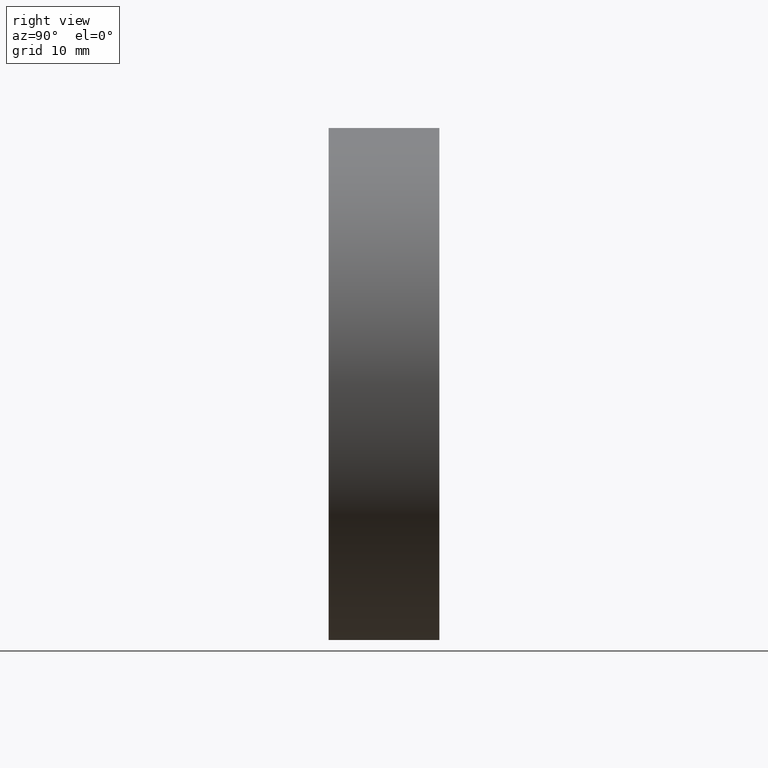
[diagram: clean part render]
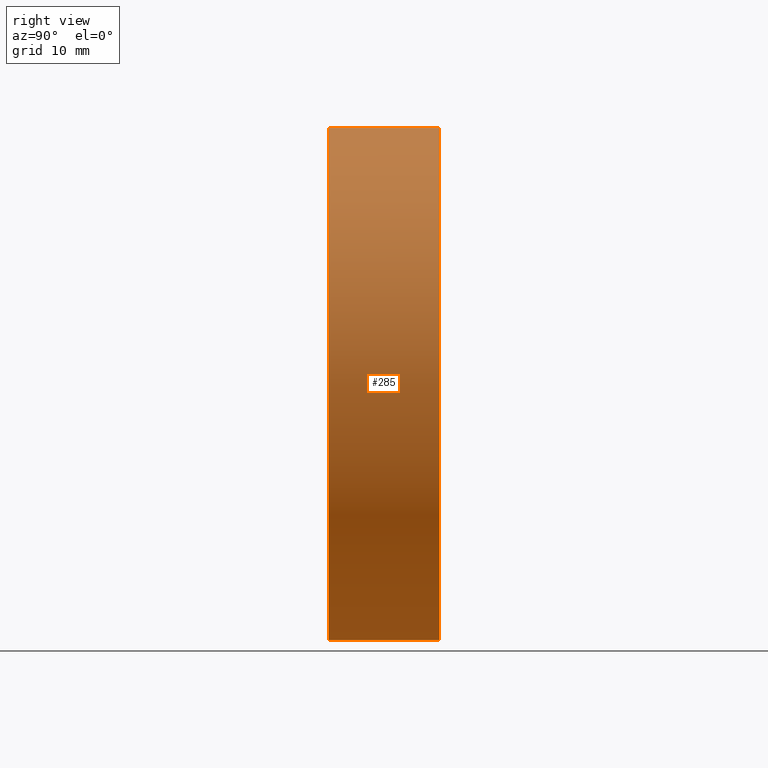
[diagram: same view with one face highlighted and labeled with its STEP entity id]
A machine part, right view. The second image highlights one B-rep face of the part: STEP entity #285.
In plain terms, the highlighted cylindrical surface (partial cylindrical patch) has radius 25.4 mm, axis along (-0, 1, -0).
Its self-contained STEP definition (entity closure, byte-faithful):
#5 = CARTESIAN_POINT ( 'NONE',  ( 3.110602869834277300E-015, 10.99999999999999600, -25.40000000000000200 ) ) ;
#13 = CARTESIAN_POINT ( 'NONE',  ( 3.110602869834277300E-015, 0.0000000000000000000, -25.40000000000000200 ) ) ;
#16 = EDGE_CURVE ( 'NONE', #160, #434, #119, .T. ) ;
#38 = DIRECTION ( 'NONE',  ( -0.0000000000000000000, 1.000000000000000000, -0.0000000000000000000 ) ) ;
#44 = DIRECTION ( 'NONE',  ( -0.0000000000000000000, 1.000000000000000000, -0.0000000000000000000 ) ) ;
#54 = CARTESIAN_POINT ( 'NONE',  ( 0.0000000000000000000, 10.99999999999999600, 25.40000000000000200 ) ) ;
#58 = EDGE_LOOP ( 'NONE', ( #167, #423, #418, #220 ) ) ;
#59 = VERTEX_POINT ( 'NONE', #383 ) ;
#71 = VECTOR ( 'NONE', #137, 1000.000000000000000 ) ;
#77 = CARTESIAN_POINT ( 'NONE',  ( 0.0000000000000000000, 60.02082041425541100, 25.40000000000000200 ) ) ;
#99 = AXIS2_PLACEMENT_3D ( 'NONE', #354, #38, #378 ) ;
#101 = CYLINDRICAL_SURFACE ( 'NONE', #99, 25.40000000000000200 ) ;
#103 = DIRECTION ( 'NONE',  ( 0.0000000000000000000, 0.0000000000000000000, 1.000000000000000000 ) ) ;
#114 = CIRCLE ( 'NONE', #159, 25.40000000000000200 ) ;
#119 = CIRCLE ( 'NONE', #384, 25.40000000000000200 ) ;
#137 = DIRECTION ( 'NONE',  ( -0.0000000000000000000, 1.000000000000000000, -0.0000000000000000000 ) ) ;
#144 = FACE_OUTER_BOUND ( 'NONE', #58, .T. ) ;
#149 = VERTEX_POINT ( 'NONE', #13 ) ;
#159 = AXIS2_PLACEMENT_3D ( 'NONE', #315, #228, #248 ) ;
#160 = VERTEX_POINT ( 'NONE', #54 ) ;
#167 = ORIENTED_EDGE ( 'NONE', *, *, #282, .T. ) ;
#190 = LINE ( 'NONE', #77, #195 ) ;
#195 = VECTOR ( 'NONE', #44, 1000.000000000000000 ) ;
#210 = DIRECTION ( 'NONE',  ( -0.0000000000000000000, 1.000000000000000000, -0.0000000000000000000 ) ) ;
#216 = EDGE_CURVE ( 'NONE', #149, #434, #289, .T. ) ;
#220 = ORIENTED_EDGE ( 'NONE', *, *, #346, .F. ) ;
#228 = DIRECTION ( 'NONE',  ( -0.0000000000000000000, 1.000000000000000000, -0.0000000000000000000 ) ) ;
#248 = DIRECTION ( 'NONE',  ( 0.0000000000000000000, 0.0000000000000000000, 1.000000000000000000 ) ) ;
#282 = EDGE_CURVE ( 'NONE', #59, #149, #114, .T. ) ;
#285 = ADVANCED_FACE ( 'NONE', ( #144 ), #101, .T. ) ;
#289 = LINE ( 'NONE', #417, #71 ) ;
#315 = CARTESIAN_POINT ( 'NONE',  ( 0.0000000000000000000, 0.0000000000000000000, 0.0000000000000000000 ) ) ;
#346 = EDGE_CURVE ( 'NONE', #59, #160, #190, .T. ) ;
#354 = CARTESIAN_POINT ( 'NONE',  ( 0.0000000000000000000, 60.02082041425541100, 0.0000000000000000000 ) ) ;
#369 = CARTESIAN_POINT ( 'NONE',  ( 0.0000000000000000000, 10.99999999999999600, 0.0000000000000000000 ) ) ;
#378 = DIRECTION ( 'NONE',  ( 0.0000000000000000000, 0.0000000000000000000, 1.000000000000000000 ) ) ;
#383 = CARTESIAN_POINT ( 'NONE',  ( 0.0000000000000000000, 0.0000000000000000000, 25.40000000000000200 ) ) ;
#384 = AXIS2_PLACEMENT_3D ( 'NONE', #369, #210, #103 ) ;
#417 = CARTESIAN_POINT ( 'NONE',  ( 3.110602869834277300E-015, 60.02082041425541100, -25.40000000000000200 ) ) ;
#418 = ORIENTED_EDGE ( 'NONE', *, *, #16, .F. ) ;
#423 = ORIENTED_EDGE ( 'NONE', *, *, #216, .T. ) ;
#434 = VERTEX_POINT ( 'NONE', #5 ) ;